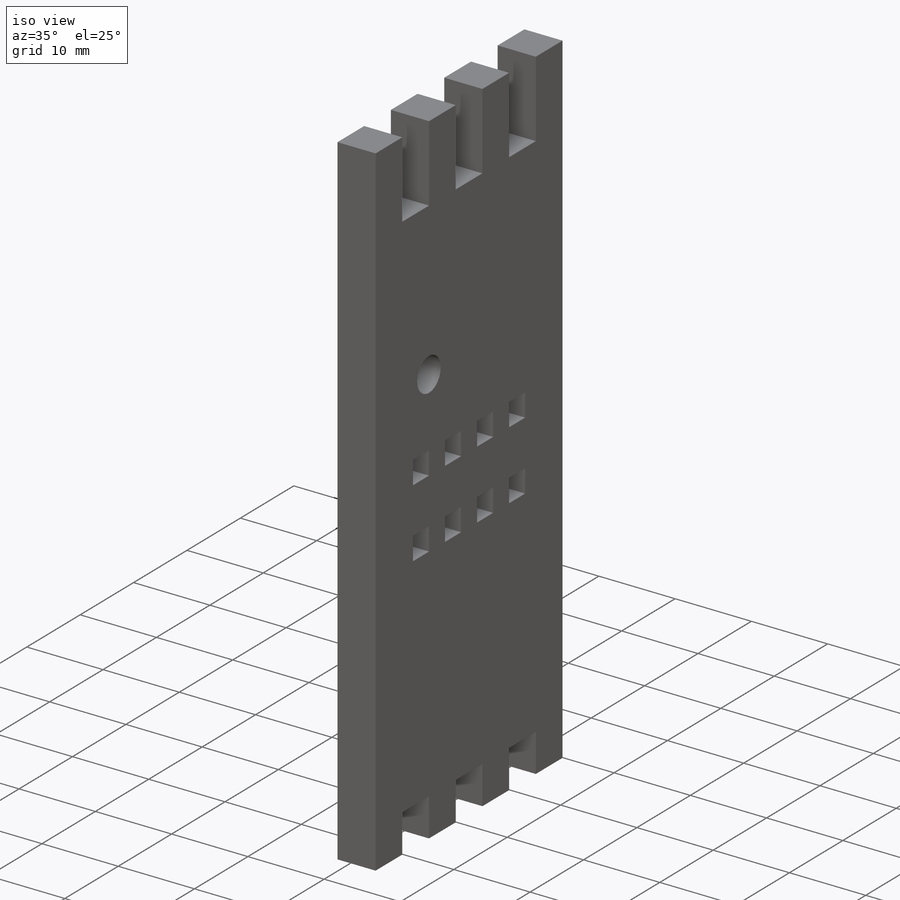
[diagram: iso view]
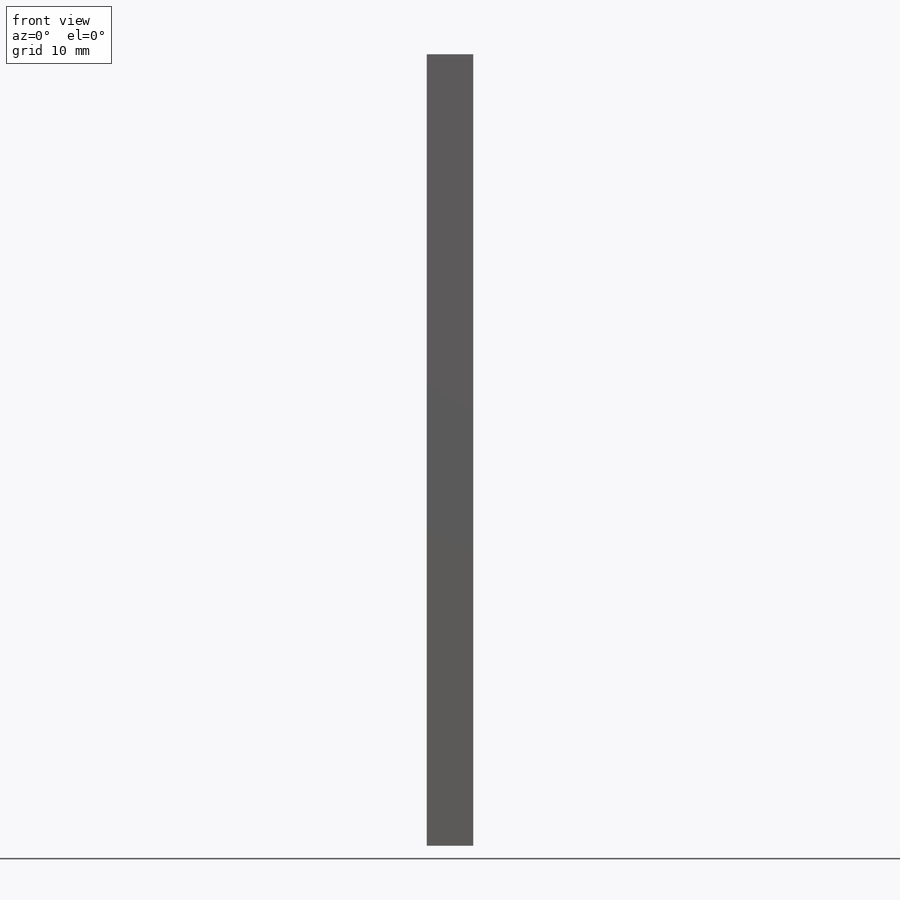
[diagram: front view]
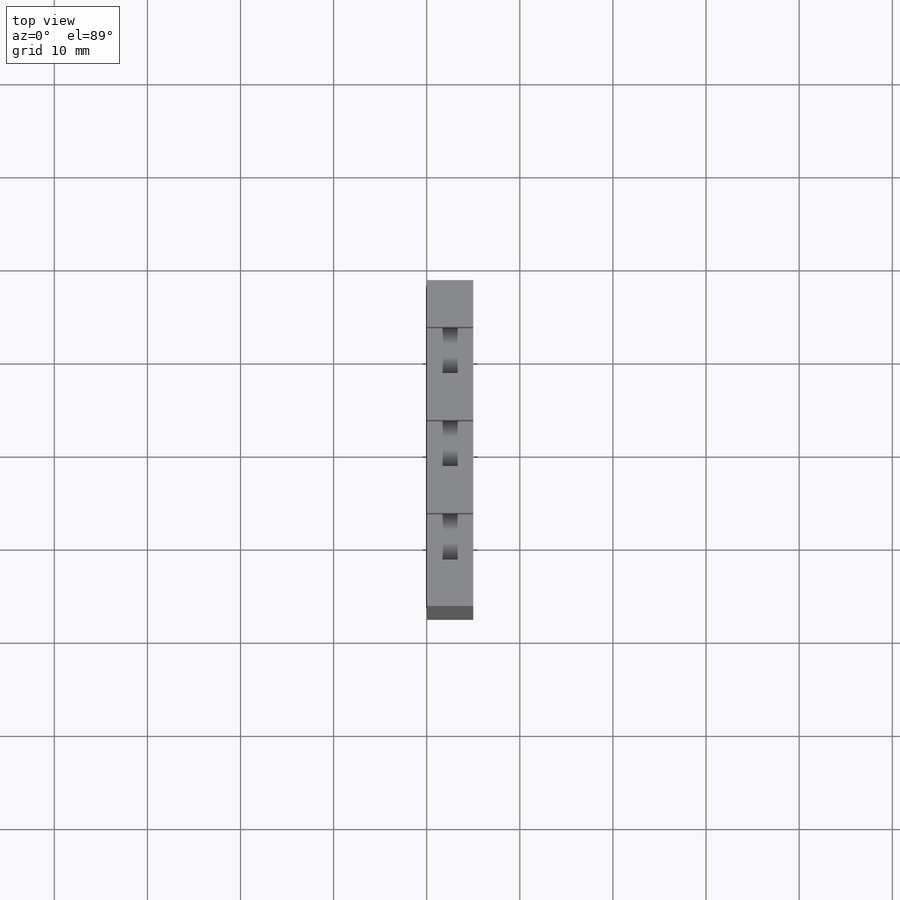
[diagram: top view]
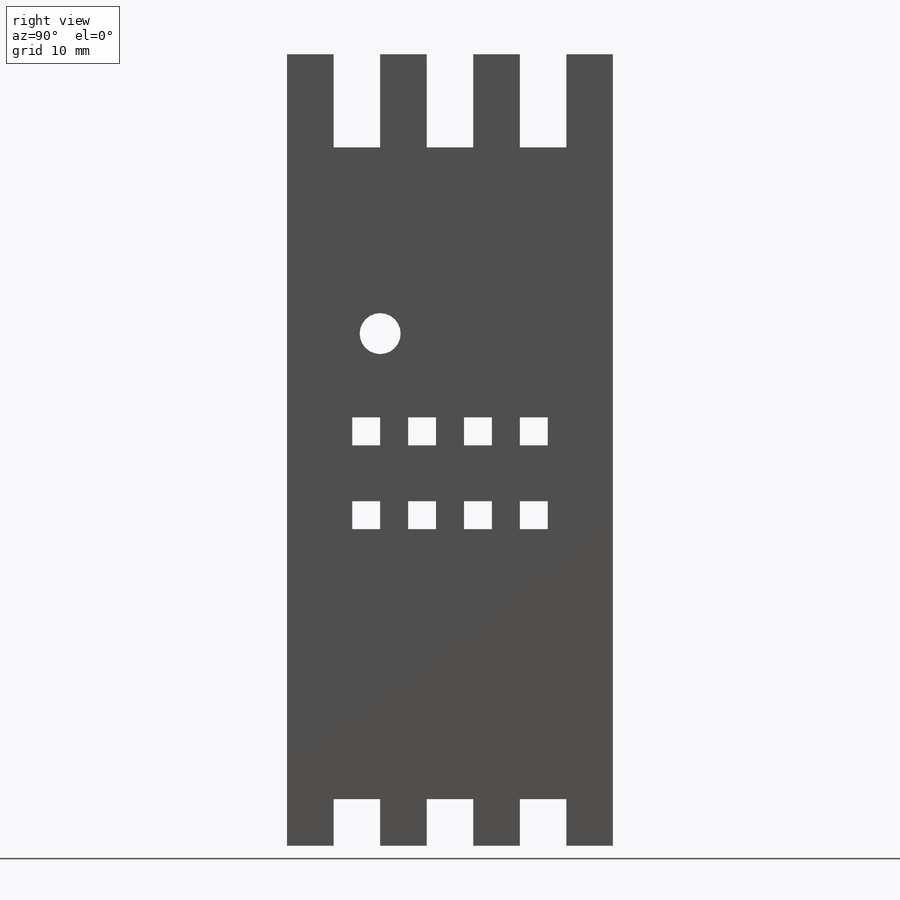
[diagram: right view]
SOLIDWORKS PART (.sldprt)
format: sldprt  version: not decoded by parser v0  size: 374,272 bytes
history: native  units: mm
features: plane x3, sketch x3, extrude x2, material x1, cut_extrude x1 (+10 scaffold rows collapsed)
feature tree (20):
  scaffold x10  (default folders/planes/origin — collapsed)
  material  "Matériau <non spécifié>"
  plane  "Plan de face"
  plane  "Plan de dessus"
  plane  "Plan de droite"
  sketch  "Esquisse1"  dims[c1.D1=4.4mm c1.D2=35.0mm c1.D3=35.0mm c1.D4=10.0mm c1.D5=10.0mm c1.D6=5.0mm c1.D7=5.0mm c1.D8=5.0mm c1.D9=5.0mm c1.D10=5.0mm c1.D11=5.0mm c1.D12=5.0mm c1.D13=5.0mm c1.D14=5.0mm c1.D15=5.0mm c1.D16=~49.497475mm c2.D3=70.0mm c2.D4=20.0mm c2.D5=10.0mm]
  extrude  "Boss.-Extru.1"  Depth=5mm
  sketch  "Esquisse3"
  extrude  "Boss.-Extru.3"  Depth=5mm
  sketch  "Esquisse4"  dims[D1=3.0mm D2=3.0mm D4=7.0mm D5=3.0mm D3=4.0]
  cut_extrude  "Enlèv. mat.-Extru.1"  Depth=10mm
decode coverage: 5 of 6 modeling features carry decoded parameters
note: ~ marks probable driven/reference dimensions
note: suppression state not decoded; provenance and decode notes live in map.json
